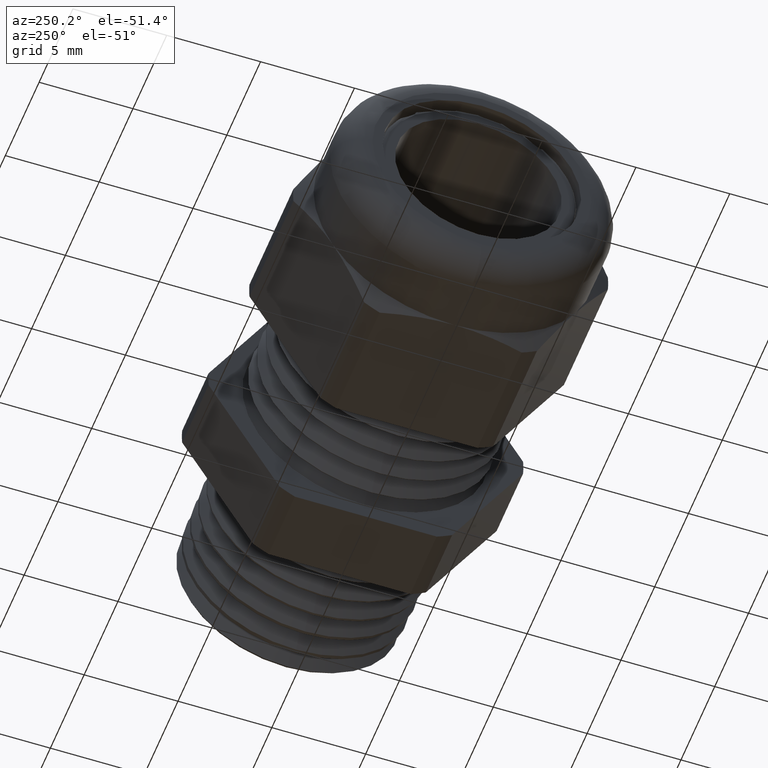
[diagram: clean part render]
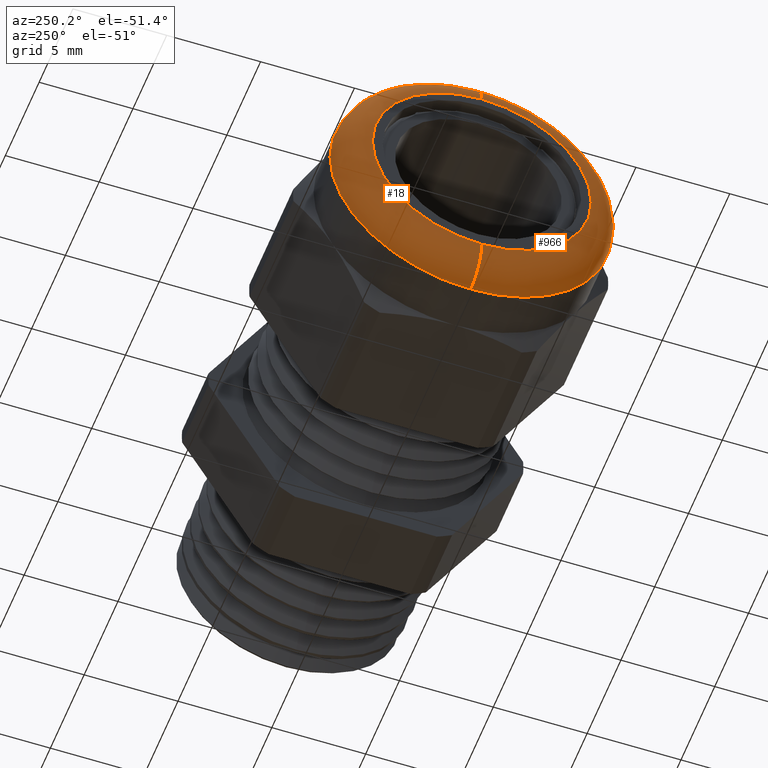
[diagram: same view with one multi-face feature highlighted, each face labeled with its STEP entity id]
A machine part, auxiliary view. The highlighted faces form ONE feature: a constant-radius fillet chain: 2 tangent blend faces with common blend radius 1.6612 mm. The faces share edges in the B-rep.
Their STEP definitions:
[1] entity #18 (Torus):
#14 = VERTEX_POINT ( 'NONE', #1242 ) ;
#15 = EDGE_CURVE ( 'NONE', #14, #23, #1239, .T. ) ;
#16 = ORIENTED_EDGE ( 'NONE', *, *, #15, .F. ) ;
#17 = EDGE_LOOP ( 'NONE', ( #16, #22, #390, #393 ) ) ;
#18 = ADVANCED_FACE ( 'NONE', ( #1240 ), #1233, .T. ) ;
#20 = VERTEX_POINT ( 'NONE', #1225 ) ;
#21 = EDGE_CURVE ( 'NONE', #14, #20, #1224, .T. ) ;
#22 = ORIENTED_EDGE ( 'NONE', *, *, #21, .T. ) ;
#23 = VERTEX_POINT ( 'NONE', #1284 ) ;
#390 = ORIENTED_EDGE ( 'NONE', *, *, #391, .F. ) ;
#391 = EDGE_CURVE ( 'NONE', #392, #20, #1975, .T. ) ;
#392 = VERTEX_POINT ( 'NONE', #1970 ) ;
#393 = ORIENTED_EDGE ( 'NONE', *, *, #394, .F. ) ;
#394 = EDGE_CURVE ( 'NONE', #23, #392, #1968, .T. ) ;
#1223 = CARTESIAN_POINT ( 'NONE',  ( -0.7645999999999999500, 2.811789050842320700E-017, 0.2295999999999997800 ) ) ;
#1224 = CIRCLE ( 'NONE', #1287, 0.06540000000000004100 ) ;
#1225 = CARTESIAN_POINT ( 'NONE',  ( -0.7645999999999999500, 0.0000000000000000000, 0.2949999999999998200 ) ) ;
#1230 = DIRECTION ( 'NONE',  ( 0.0000000000000000000, 0.0000000000000000000, -1.000000000000000000 ) ) ;
#1231 = DIRECTION ( 'NONE',  ( 1.000000000000000000, 0.0000000000000000000, 0.0000000000000000000 ) ) ;
#1232 = AXIS2_PLACEMENT_3D ( 'NONE', #1234, #1231, #1230 ) ;
#1233 = TOROIDAL_SURFACE ( 'NONE', #1232, 0.2295999999999997800, 0.06540000000000002800 ) ;
#1234 = CARTESIAN_POINT ( 'NONE',  ( -0.7645999999999999500, 0.0000000000000000000, 0.0000000000000000000 ) ) ;
#1235 = DIRECTION ( 'NONE',  ( 0.0000000000000000000, 0.0000000000000000000, -1.000000000000000000 ) ) ;
#1236 = DIRECTION ( 'NONE',  ( -1.000000000000000000, 0.0000000000000000000, 0.0000000000000000000 ) ) ;
#1237 = CARTESIAN_POINT ( 'NONE',  ( -0.8300000000000000700, 0.0000000000000000000, 0.0000000000000000000 ) ) ;
#1238 = AXIS2_PLACEMENT_3D ( 'NONE', #1237, #1236, #1235 ) ;
#1239 = CIRCLE ( 'NONE', #1238, 0.2295999999999997800 ) ;
#1240 = FACE_OUTER_BOUND ( 'NONE', #17, .T. ) ;
#1242 = CARTESIAN_POINT ( 'NONE',  ( -0.8300000000000000700, 3.212248554163504800E-017, 0.2295999999999997800 ) ) ;
#1284 = CARTESIAN_POINT ( 'NONE',  ( -0.8300000000000000700, 0.0000000000000000000, -0.2295999999999997800 ) ) ;
#1285 = DIRECTION ( 'NONE',  ( 0.0000000000000000000, 1.224646799147352700E-016, 1.000000000000000000 ) ) ;
#1286 = DIRECTION ( 'NONE',  ( 0.0000000000000000000, 1.000000000000000000, -1.224646799147353200E-016 ) ) ;
#1287 = AXIS2_PLACEMENT_3D ( 'NONE', #1223, #1286, #1285 ) ;
#1964 = DIRECTION ( 'NONE',  ( 0.0000000000000000000, 0.0000000000000000000, -1.000000000000000000 ) ) ;
#1965 = DIRECTION ( 'NONE',  ( 0.0000000000000000000, -1.000000000000000000, 0.0000000000000000000 ) ) ;
#1966 = CARTESIAN_POINT ( 'NONE',  ( -0.7645999999999999500, 0.0000000000000000000, -0.2295999999999997800 ) ) ;
#1967 = AXIS2_PLACEMENT_3D ( 'NONE', #1966, #1965, #1964 ) ;
#1968 = CIRCLE ( 'NONE', #1967, 0.06540000000000004100 ) ;
#1970 = CARTESIAN_POINT ( 'NONE',  ( -0.7645999999999999500, 3.612708057484689500E-017, -0.2949999999999998200 ) ) ;
#1971 = DIRECTION ( 'NONE',  ( 0.0000000000000000000, 0.0000000000000000000, -1.000000000000000000 ) ) ;
#1972 = DIRECTION ( 'NONE',  ( 1.000000000000000000, 0.0000000000000000000, 0.0000000000000000000 ) ) ;
#1973 = CARTESIAN_POINT ( 'NONE',  ( -0.7645999999999999500, 0.0000000000000000000, 0.0000000000000000000 ) ) ;
#1974 = AXIS2_PLACEMENT_3D ( 'NONE', #1973, #1972, #1971 ) ;
#1975 = CIRCLE ( 'NONE', #1974, 0.2949999999999998200 ) ;
[2] entity #966 (Torus):
#14 = VERTEX_POINT ( 'NONE', #1242 ) ;
#20 = VERTEX_POINT ( 'NONE', #1225 ) ;
#21 = EDGE_CURVE ( 'NONE', #14, #20, #1224, .T. ) ;
#23 = VERTEX_POINT ( 'NONE', #1284 ) ;
#392 = VERTEX_POINT ( 'NONE', #1970 ) ;
#394 = EDGE_CURVE ( 'NONE', #23, #392, #1968, .T. ) ;
#900 = EDGE_CURVE ( 'NONE', #23, #14, #2974, .T. ) ;
#930 = EDGE_CURVE ( 'NONE', #20, #392, #2993, .T. ) ;
#966 = ADVANCED_FACE ( 'NONE', ( #3018 ), #3017, .T. ) ;
#967 = EDGE_LOOP ( 'NONE', ( #968, #1025, #1026, #1027 ) ) ;
#968 = ORIENTED_EDGE ( 'NONE', *, *, #21, .F. ) ;
#1025 = ORIENTED_EDGE ( 'NONE', *, *, #900, .F. ) ;
#1026 = ORIENTED_EDGE ( 'NONE', *, *, #394, .T. ) ;
#1027 = ORIENTED_EDGE ( 'NONE', *, *, #930, .F. ) ;
#1223 = CARTESIAN_POINT ( 'NONE',  ( -0.7645999999999999500, 2.811789050842320700E-017, 0.2295999999999997800 ) ) ;
#1224 = CIRCLE ( 'NONE', #1287, 0.06540000000000004100 ) ;
#1225 = CARTESIAN_POINT ( 'NONE',  ( -0.7645999999999999500, 0.0000000000000000000, 0.2949999999999998200 ) ) ;
#1242 = CARTESIAN_POINT ( 'NONE',  ( -0.8300000000000000700, 3.212248554163504800E-017, 0.2295999999999997800 ) ) ;
#1284 = CARTESIAN_POINT ( 'NONE',  ( -0.8300000000000000700, 0.0000000000000000000, -0.2295999999999997800 ) ) ;
#1285 = DIRECTION ( 'NONE',  ( 0.0000000000000000000, 1.224646799147352700E-016, 1.000000000000000000 ) ) ;
#1286 = DIRECTION ( 'NONE',  ( 0.0000000000000000000, 1.000000000000000000, -1.224646799147353200E-016 ) ) ;
#1287 = AXIS2_PLACEMENT_3D ( 'NONE', #1223, #1286, #1285 ) ;
#1964 = DIRECTION ( 'NONE',  ( 0.0000000000000000000, 0.0000000000000000000, -1.000000000000000000 ) ) ;
#1965 = DIRECTION ( 'NONE',  ( 0.0000000000000000000, -1.000000000000000000, 0.0000000000000000000 ) ) ;
#1966 = CARTESIAN_POINT ( 'NONE',  ( -0.7645999999999999500, 0.0000000000000000000, -0.2295999999999997800 ) ) ;
#1967 = AXIS2_PLACEMENT_3D ( 'NONE', #1966, #1965, #1964 ) ;
#1968 = CIRCLE ( 'NONE', #1967, 0.06540000000000004100 ) ;
#1970 = CARTESIAN_POINT ( 'NONE',  ( -0.7645999999999999500, 3.612708057484689500E-017, -0.2949999999999998200 ) ) ;
#2970 = DIRECTION ( 'NONE',  ( 0.0000000000000000000, 0.0000000000000000000, -1.000000000000000000 ) ) ;
#2971 = DIRECTION ( 'NONE',  ( -1.000000000000000000, 0.0000000000000000000, 0.0000000000000000000 ) ) ;
#2972 = CARTESIAN_POINT ( 'NONE',  ( -0.8300000000000000700, 0.0000000000000000000, 0.0000000000000000000 ) ) ;
#2973 = AXIS2_PLACEMENT_3D ( 'NONE', #2972, #2971, #2970 ) ;
#2974 = CIRCLE ( 'NONE', #2973, 0.2295999999999997800 ) ;
#2989 = DIRECTION ( 'NONE',  ( 0.0000000000000000000, 0.0000000000000000000, -1.000000000000000000 ) ) ;
#2990 = DIRECTION ( 'NONE',  ( 1.000000000000000000, 0.0000000000000000000, 0.0000000000000000000 ) ) ;
#2991 = CARTESIAN_POINT ( 'NONE',  ( -0.7645999999999999500, 0.0000000000000000000, 0.0000000000000000000 ) ) ;
#2992 = AXIS2_PLACEMENT_3D ( 'NONE', #2991, #2990, #2989 ) ;
#2993 = CIRCLE ( 'NONE', #2992, 0.2949999999999998200 ) ;
#3014 = DIRECTION ( 'NONE',  ( 0.0000000000000000000, 0.0000000000000000000, -1.000000000000000000 ) ) ;
#3015 = DIRECTION ( 'NONE',  ( 1.000000000000000000, 0.0000000000000000000, 0.0000000000000000000 ) ) ;
#3016 = AXIS2_PLACEMENT_3D ( 'NONE', #3023, #3015, #3014 ) ;
#3017 = TOROIDAL_SURFACE ( 'NONE', #3016, 0.2295999999999997800, 0.06540000000000002800 ) ;
#3018 = FACE_OUTER_BOUND ( 'NONE', #967, .T. ) ;
#3023 = CARTESIAN_POINT ( 'NONE',  ( -0.7645999999999999500, 0.0000000000000000000, 0.0000000000000000000 ) ) ;